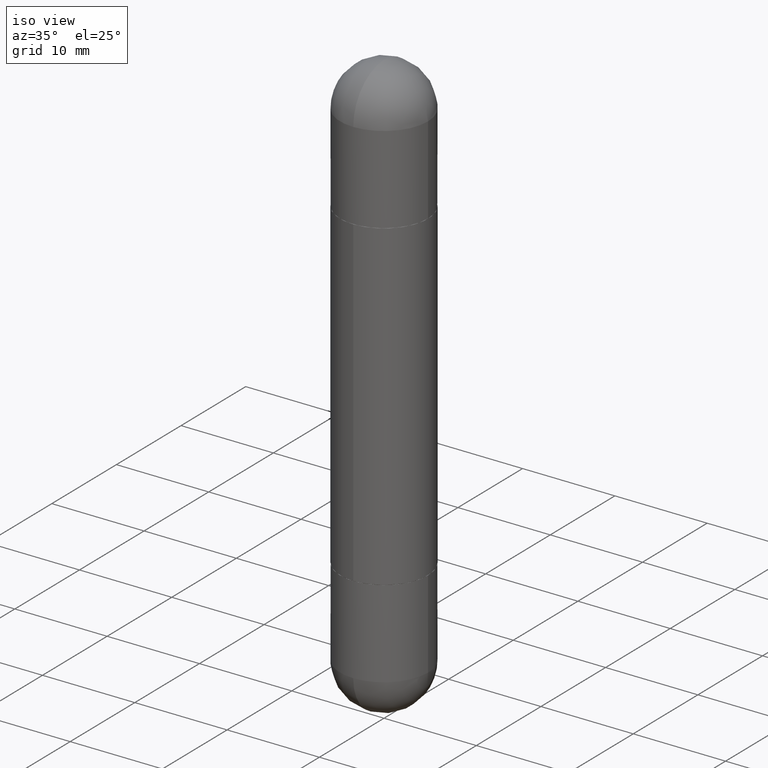
[diagram: clean part render]
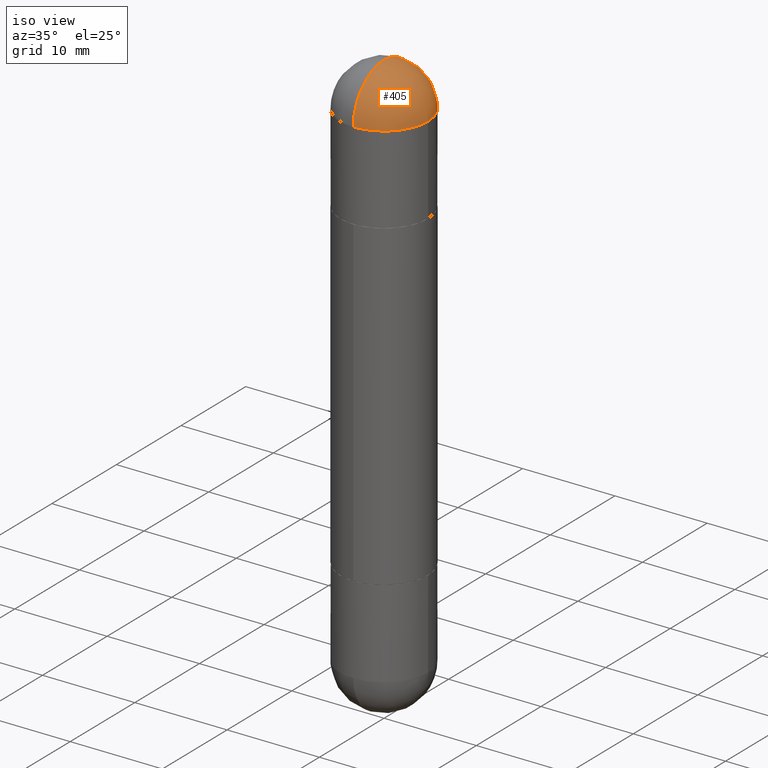
[diagram: same view with one face highlighted and labeled with its STEP entity id]
A machine part, iso view. The second image highlights one B-rep face of the part: STEP entity #405.
In plain terms, the highlighted spherical surface has radius 4.7625 mm.
Its self-contained STEP definition (entity closure, byte-faithful):
#6 = AXIS2_PLACEMENT_3D ( 'NONE', #530, #393, #13 ) ;
#13 = DIRECTION ( 'NONE',  ( 1.000000000000000000, -6.982962677686270655E-15, 0.000000000000000000 ) ) ;
#16 = SPHERICAL_SURFACE ( 'NONE', #799, 0.1875000000000003331 ) ;
#42 = CARTESIAN_POINT ( 'NONE',  ( -1.286343374582108525E-15, -0.1875000000000084932, -0.1875000000000013045 ) ) ;
#73 = AXIS2_PLACEMENT_3D ( 'NONE', #204, #81, #268 ) ;
#76 = CARTESIAN_POINT ( 'NONE',  ( 5.324026836389243254E-29, -8.548232964214825368E-15, -0.1875000000000006661 ) ) ;
#81 = DIRECTION ( 'NONE',  ( -1.000000000000000000, 6.982962677686265922E-15, 4.883557194083112340E-29 ) ) ;
#136 = VERTEX_POINT ( 'NONE', #546 ) ;
#141 = DIRECTION ( 'NONE',  ( 2.445468806185136597E-29, -3.491481338843145583E-15, 1.000000000000000000 ) ) ;
#154 = AXIS2_PLACEMENT_3D ( 'NONE', #806, #193, #391 ) ;
#193 = DIRECTION ( 'NONE',  ( 1.000000000000000000, -6.860497997771530774E-15, -4.840798879624142912E-29 ) ) ;
#204 = CARTESIAN_POINT ( 'NONE',  ( 5.324026836389243254E-29, -8.548232964214825368E-15, -0.1875000000000006661 ) ) ;
#245 = DIRECTION ( 'NONE',  ( 1.000000000000000000, -6.982962677686270655E-15, 0.000000000000000000 ) ) ;
#261 = DIRECTION ( 'NONE',  ( 1.000000000000000000, -6.982962677686266711E-15, -4.883557194083113462E-29 ) ) ;
#268 = DIRECTION ( 'NONE',  ( -6.982962677686265922E-15, -1.000000000000000000, 0.000000000000000000 ) ) ;
#307 = CIRCLE ( 'NONE', #73, 0.1875000000000003331 ) ;
#345 = VERTEX_POINT ( 'NONE', #751 ) ;
#370 = ORIENTED_EDGE ( 'NONE', *, *, #489, .T. ) ;
#391 = DIRECTION ( 'NONE',  ( 6.860497997771530774E-15, 1.000000000000000000, 0.000000000000000000 ) ) ;
#393 = DIRECTION ( 'NONE',  ( 2.445468806185136597E-29, -3.491481338843145583E-15, 1.000000000000000000 ) ) ;
#395 = EDGE_CURVE ( 'NONE', #639, #345, #307, .T. ) ;
#404 = FACE_OUTER_BOUND ( 'NONE', #510, .T. ) ;
#405 = ADVANCED_FACE ( 'NONE', ( #404 ), #16, .T. ) ;
#416 = CIRCLE ( 'NONE', #6, 0.1875000000000000555 ) ;
#418 = CIRCLE ( 'NONE', #429, 0.1875000000000000555 ) ;
#429 = AXIS2_PLACEMENT_3D ( 'NONE', #563, #141, #245 ) ;
#489 = EDGE_CURVE ( 'NONE', #645, #136, #416, .T. ) ;
#510 = EDGE_LOOP ( 'NONE', ( #695, #665, #370, #577 ) ) ;
#521 = DIRECTION ( 'NONE',  ( 6.982962677686266711E-15, 1.000000000000000000, 3.460340791974727494E-15 ) ) ;
#530 = CARTESIAN_POINT ( 'NONE',  ( 5.655146614303128380E-29, -8.074050596074775072E-15, -0.1875000000000006661 ) ) ;
#546 = CARTESIAN_POINT ( 'NONE',  ( 0.1875000000000000555, -8.729576217442571356E-15, -0.1875000000000006661 ) ) ;
#563 = CARTESIAN_POINT ( 'NONE',  ( 5.655146614303128380E-29, -8.074050596074775072E-15, -0.1875000000000006661 ) ) ;
#577 = ORIENTED_EDGE ( 'NONE', *, *, #743, .T. ) ;
#639 = VERTEX_POINT ( 'NONE', #792 ) ;
#645 = VERTEX_POINT ( 'NONE', #42 ) ;
#665 = ORIENTED_EDGE ( 'NONE', *, *, #774, .T. ) ;
#695 = ORIENTED_EDGE ( 'NONE', *, *, #395, .F. ) ;
#743 = EDGE_CURVE ( 'NONE', #136, #345, #418, .T. ) ;
#751 = CARTESIAN_POINT ( 'NONE',  ( 1.309305502066231017E-15, 0.1874999999999918954, -0.1875000000000000278 ) ) ;
#774 = EDGE_CURVE ( 'NONE', #639, #645, #800, .T. ) ;
#792 = CARTESIAN_POINT ( 'NONE',  ( 5.790569421510013204E-29, -9.191404651505909607E-15, -3.414809992080329023E-16 ) ) ;
#799 = AXIS2_PLACEMENT_3D ( 'NONE', #76, #261, #521 ) ;
#800 = CIRCLE ( 'NONE', #154, 0.1875000000000003331 ) ;
#806 = CARTESIAN_POINT ( 'NONE',  ( 5.324026836389243254E-29, -8.548232964214825368E-15, -0.1875000000000006661 ) ) ;